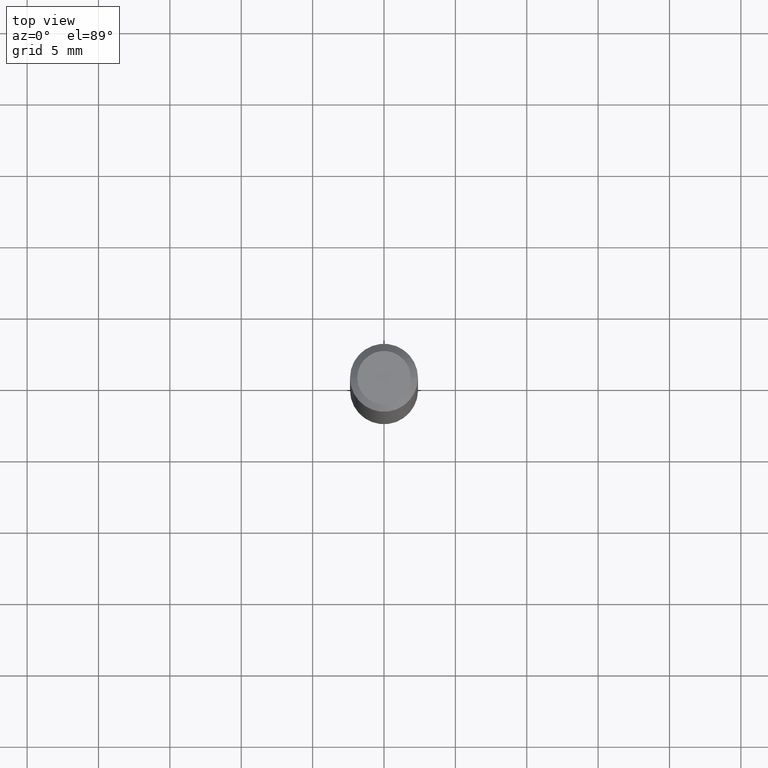
[diagram: clean part render]
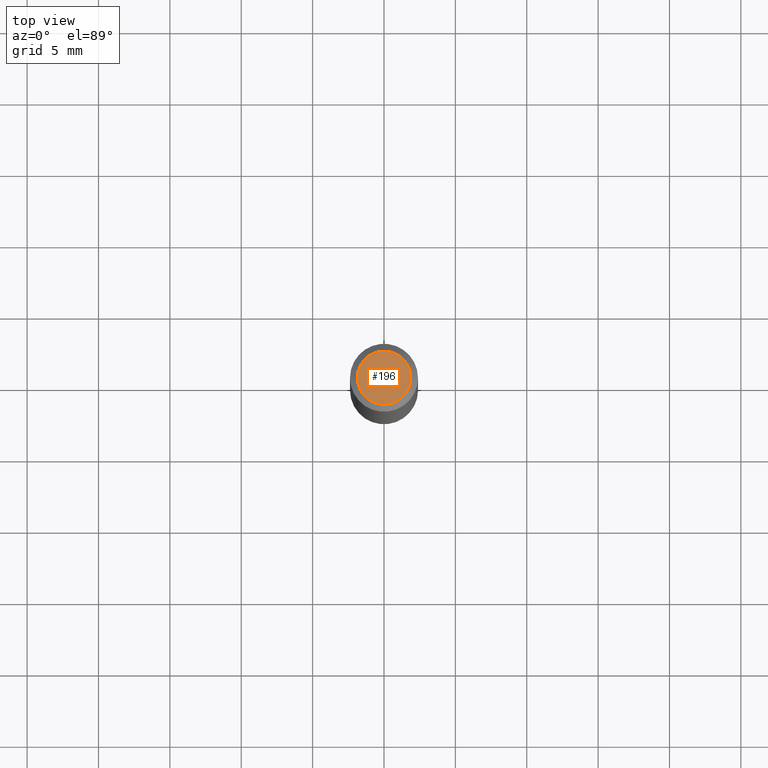
[diagram: same view with one face highlighted and labeled with its STEP entity id]
A machine part, top view. The second image highlights one B-rep face of the part: STEP entity #196.
In plain terms, the highlighted planar face has unit normal (0, -0, -1).
Its self-contained STEP definition (entity closure, byte-faithful):
#29 = VERTEX_POINT ( 'NONE', #204 ) ;
#36 = EDGE_CURVE ( 'NONE', #29, #216, #399, .T. ) ;
#46 = DIRECTION ( 'NONE',  ( -2.445468806185136597E-29, 3.491481338843145583E-15, 1.000000000000000000 ) ) ;
#56 = FACE_OUTER_BOUND ( 'NONE', #368, .T. ) ;
#61 = AXIS2_PLACEMENT_3D ( 'NONE', #306, #212, #341 ) ;
#116 = CARTESIAN_POINT ( 'NONE',  ( 5.219257071676098903E-46, -7.451715851902235727E-32, -2.134256245050205639E-17 ) ) ;
#164 = CARTESIAN_POINT ( 'NONE',  ( 0.07375000000000006550, -6.094815207017975989E-16, -2.134256245049812442E-17 ) ) ;
#196 = ADVANCED_FACE ( 'NONE', ( #56 ), #242, .F. ) ;
#201 = AXIS2_PLACEMENT_3D ( 'NONE', #235, #46, #202 ) ;
#202 = DIRECTION ( 'NONE',  ( 1.000000000000000000, -6.982962677686265922E-15, 4.878439923190939118E-29 ) ) ;
#204 = CARTESIAN_POINT ( 'NONE',  ( -0.07375000000000006550, 5.499083108677936415E-16, -2.134256245050577883E-17 ) ) ;
#212 = DIRECTION ( 'NONE',  ( 2.438088387897960049E-29, -3.491481338843145188E-15, -1.000000000000000000 ) ) ;
#216 = VERTEX_POINT ( 'NONE', #164 ) ;
#235 = CARTESIAN_POINT ( 'NONE',  ( 5.219257071676098903E-46, -7.451715851902235727E-32, -2.134256245050205639E-17 ) ) ;
#241 = ORIENTED_EDGE ( 'NONE', *, *, #394, .T. ) ;
#242 = PLANE ( 'NONE',  #61 ) ;
#263 = CIRCLE ( 'NONE', #373, 0.07375000000000006550 ) ;
#302 = DIRECTION ( 'NONE',  ( -2.445468806185136597E-29, 3.491481338843145583E-15, 1.000000000000000000 ) ) ;
#305 = DIRECTION ( 'NONE',  ( 1.000000000000000000, -6.982962677686265922E-15, 4.878439923190939118E-29 ) ) ;
#306 = CARTESIAN_POINT ( 'NONE',  ( 5.149934974793625841E-16, 0.07375000000000006550, -2.681680299649332462E-16 ) ) ;
#341 = DIRECTION ( 'NONE',  ( -1.000000000000000000, 6.982962677686265922E-15, -4.876176775795935793E-29 ) ) ;
#368 = EDGE_LOOP ( 'NONE', ( #416, #241 ) ) ;
#373 = AXIS2_PLACEMENT_3D ( 'NONE', #116, #302, #305 ) ;
#394 = EDGE_CURVE ( 'NONE', #216, #29, #263, .T. ) ;
#399 = CIRCLE ( 'NONE', #201, 0.07375000000000006550 ) ;
#416 = ORIENTED_EDGE ( 'NONE', *, *, #36, .T. ) ;